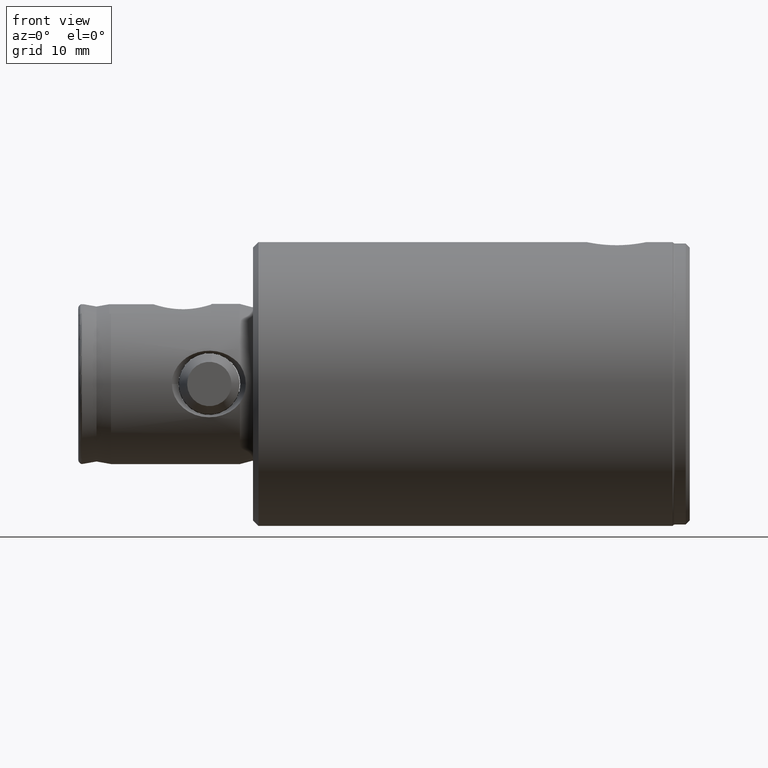
[diagram: clean part render]
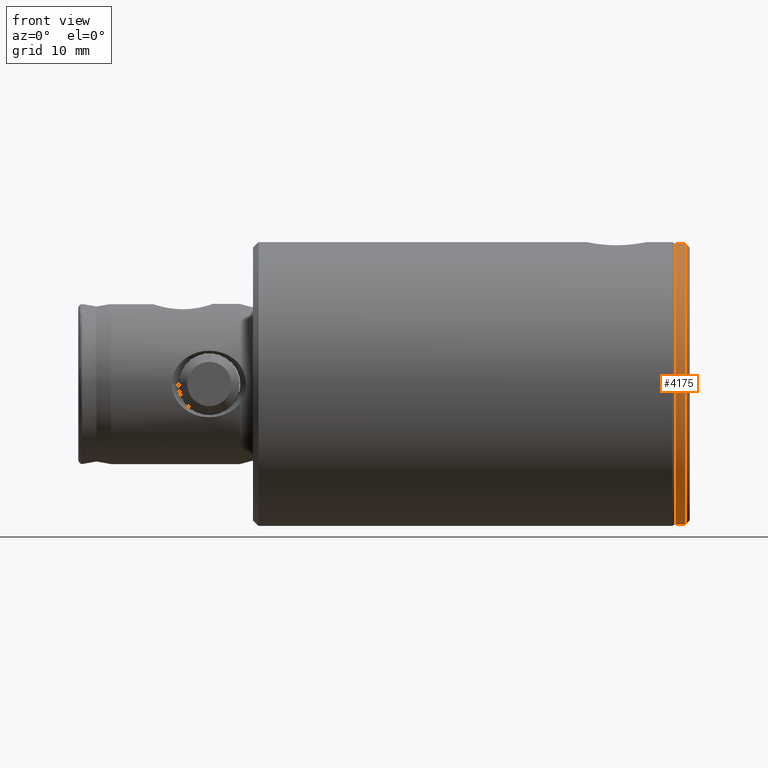
[diagram: same view with one face highlighted and labeled with its STEP entity id]
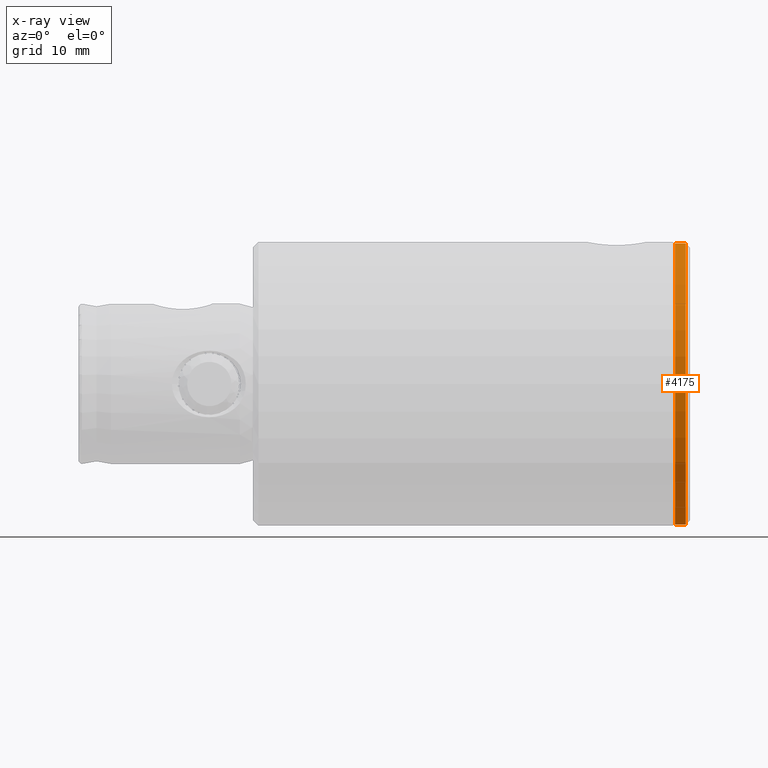
[diagram: x-ray of the same camera — body ghosted, the highlighted face saturated]
A machine part, front view. The second image highlights one B-rep face of the part: STEP entity #4175.
The next image is the same camera in x-ray: the body ghosted, the highlighted face saturated — about 0% of this face is hidden behind the body in this view.
In plain terms, the highlighted cylindrical surface (partial cylindrical patch) has radius 19.3 mm, axis along (-1, 0, 0).
Its self-contained STEP definition (entity closure, byte-faithful):
#26 = CARTESIAN_POINT ( 'NONE',  ( -19.30000000000000100, 2.363568322354391800E-015, 0.5500000000000027100 ) ) ;
#238 = EDGE_CURVE ( 'NONE', #4161, #2712, #1078, .T. ) ;
#425 = CARTESIAN_POINT ( 'NONE',  ( 19.29999999999999700, 0.0000000000000000000, 2.000000000000000000 ) ) ;
#558 = ORIENTED_EDGE ( 'NONE', *, *, #883, .F. ) ;
#589 = EDGE_CURVE ( 'NONE', #2153, #2712, #4200, .T. ) ;
#803 = CARTESIAN_POINT ( 'NONE',  ( 0.0000000000000000000, 0.0000000000000000000, 10.05000000000000100 ) ) ;
#882 = VERTEX_POINT ( 'NONE', #26 ) ;
#883 = EDGE_CURVE ( 'NONE', #2153, #882, #3568, .T. ) ;
#902 = CARTESIAN_POINT ( 'NONE',  ( 19.30000000000000100, 0.0000000000000000000, 10.05000000000000100 ) ) ;
#922 = DIRECTION ( 'NONE',  ( 1.000000000000000000, 0.0000000000000000000, 0.0000000000000000000 ) ) ;
#952 = CARTESIAN_POINT ( 'NONE',  ( 0.0000000000000000000, 0.0000000000000000000, 0.5500000000000027100 ) ) ;
#980 = EDGE_LOOP ( 'NONE', ( #1723, #558, #4555, #3548 ) ) ;
#1078 = CIRCLE ( 'NONE', #2652, 19.29999999999999700 ) ;
#1139 = DIRECTION ( 'NONE',  ( 0.0000000000000000000, 0.0000000000000000000, 1.000000000000000000 ) ) ;
#1328 = DIRECTION ( 'NONE',  ( 1.000000000000000000, 0.0000000000000000000, 0.0000000000000000000 ) ) ;
#1405 = CYLINDRICAL_SURFACE ( 'NONE', #3296, 19.30000000000000100 ) ;
#1579 = CARTESIAN_POINT ( 'NONE',  ( -19.30000000000000100, 2.363568322354391800E-015, 10.05000000000000100 ) ) ;
#1723 = ORIENTED_EDGE ( 'NONE', *, *, #2786, .F. ) ;
#2153 = VERTEX_POINT ( 'NONE', #3750 ) ;
#2233 = DIRECTION ( 'NONE',  ( 1.000000000000000000, 0.0000000000000000000, 0.0000000000000000000 ) ) ;
#2652 = AXIS2_PLACEMENT_3D ( 'NONE', #4549, #3814, #922 ) ;
#2712 = VERTEX_POINT ( 'NONE', #425 ) ;
#2786 = EDGE_CURVE ( 'NONE', #882, #4161, #3424, .T. ) ;
#2949 = CARTESIAN_POINT ( 'NONE',  ( -19.29999999999999700, 2.363568322354391800E-015, 2.000000000000000000 ) ) ;
#2953 = AXIS2_PLACEMENT_3D ( 'NONE', #952, #3469, #1328 ) ;
#3296 = AXIS2_PLACEMENT_3D ( 'NONE', #803, #4415, #2233 ) ;
#3424 = LINE ( 'NONE', #1579, #3780 ) ;
#3469 = DIRECTION ( 'NONE',  ( -0.0000000000000000000, -0.0000000000000000000, -1.000000000000000000 ) ) ;
#3548 = ORIENTED_EDGE ( 'NONE', *, *, #238, .F. ) ;
#3568 = CIRCLE ( 'NONE', #2953, 19.30000000000000100 ) ;
#3750 = CARTESIAN_POINT ( 'NONE',  ( 19.30000000000000100, 0.0000000000000000000, 0.5500000000000027100 ) ) ;
#3780 = VECTOR ( 'NONE', #4115, 1000.000000000000000 ) ;
#3814 = DIRECTION ( 'NONE',  ( 0.0000000000000000000, 0.0000000000000000000, 1.000000000000000000 ) ) ;
#4115 = DIRECTION ( 'NONE',  ( 0.0000000000000000000, 0.0000000000000000000, 1.000000000000000000 ) ) ;
#4161 = VERTEX_POINT ( 'NONE', #2949 ) ;
#4175 = ADVANCED_FACE ( 'NONE', ( #4281 ), #1405, .T. ) ;
#4200 = LINE ( 'NONE', #902, #4204 ) ;
#4204 = VECTOR ( 'NONE', #1139, 1000.000000000000000 ) ;
#4281 = FACE_OUTER_BOUND ( 'NONE', #980, .T. ) ;
#4415 = DIRECTION ( 'NONE',  ( 0.0000000000000000000, 0.0000000000000000000, 1.000000000000000000 ) ) ;
#4549 = CARTESIAN_POINT ( 'NONE',  ( 0.0000000000000000000, 0.0000000000000000000, 2.000000000000000000 ) ) ;
#4555 = ORIENTED_EDGE ( 'NONE', *, *, #589, .T. ) ;